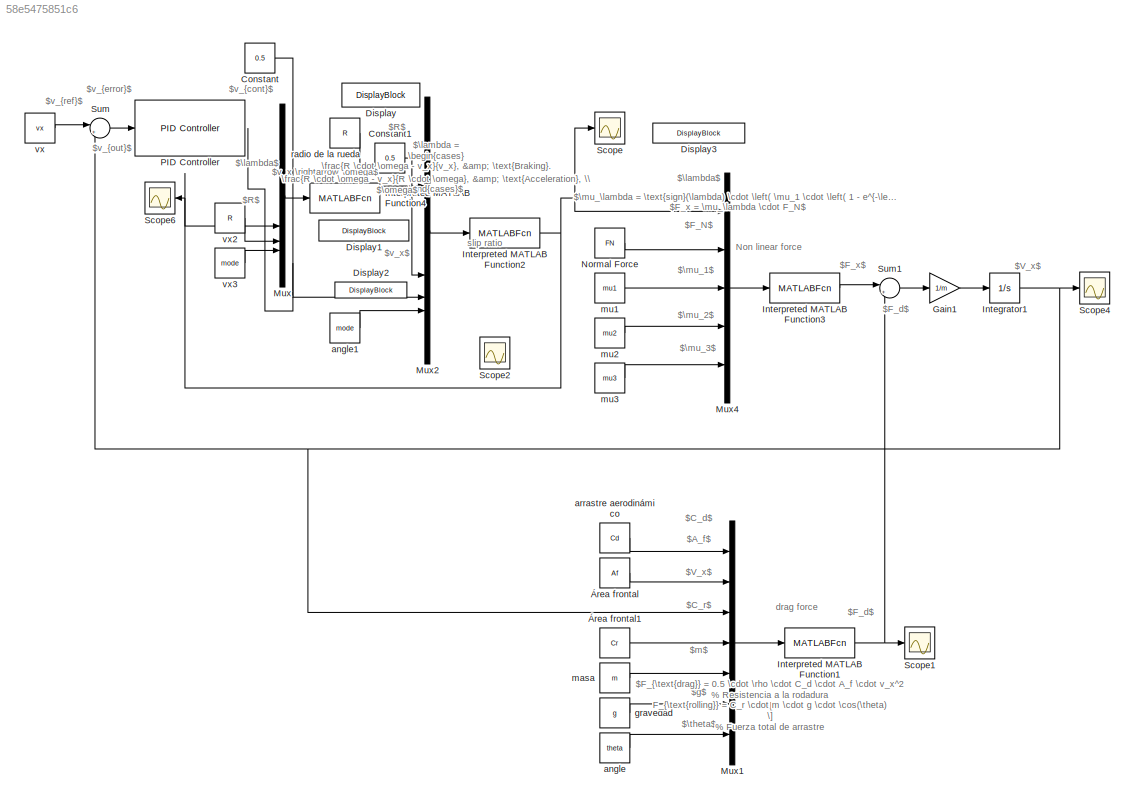
MODEL slx_58e5475851c6
KIND model
CONFIG AbsTol = auto
CONFIG EnableMultiTasking = off
CONFIG FixedStep = auto
CONFIG MaxStep = auto
CONFIG MinStep = auto
CONFIG RelTol = 1e-3
CONFIG SampleTimeConstraint = Unconstrained
CONFIG SolverName = VariableStepAuto
CONFIG StartTime = 0.0
CONFIG StopTime = 10
BLOCK [Constant] Constant
  Value = 0.5
BLOCK [Constant] Constant1
  Value = 0.5
BLOCK [DisplayBlock] Display
  LabelPosition = Hide
  Transparency = 1
BLOCK [DisplayBlock] Display1
  LabelPosition = Hide
  Transparency = 1
BLOCK [DisplayBlock] Display2
  LabelPosition = Hide
  Transparency = 1
BLOCK [DisplayBlock] Display3
  LabelPosition = Hide
  Transparency = 1
BLOCK [Gain] Gain1
  Gain = 1/m
BLOCK [Integrator] Integrator1
BLOCK [MATLABFcn] Interpreted MATLAB Function1
  MATLABFcn = drag_force
  Output1D = off
BLOCK [MATLABFcn] Interpreted MATLAB Function2
  MATLABFcn = slip_ratio
  Output1D = off
BLOCK [MATLABFcn] Interpreted MATLAB Function3
  MATLABFcn = nonlinear_force
  Output1D = off
BLOCK [MATLABFcn] Interpreted MATLAB Function4
  MATLABFcn = convertlw
  Output1D = off
  OutputDimensions = 1
BLOCK [Mux] Mux
  DisplayOption = bar
BLOCK [Mux] Mux1
  DisplayOption = bar
  Inputs = 7
BLOCK [Mux] Mux2
  DisplayOption = bar
BLOCK [Mux] Mux4
  DisplayOption = bar
  Inputs = 5
BLOCK [Constant] Normal Force
  Value = FN
BLOCK [Reference] PID Controller  REF=slpidlib/PID Controller
  LibrarySourceBlock = simulink/Continuous/PID Controller
  SourceBlock = slpidlib/PID Controller
  SourceType = PID 1dof
BLOCK [Scope] Scope
  Floating = off
  NumInputPorts = 1
  ScopeSpecificationString = Simulink.scopes.TimeScopeBlockCfg('CurrentConfiguration', extmgr.ConfigurationSet(extmgr.Configuration('Core','General UI',true),extmgr.Configuration('Core','Source UI',true),extmgr.Configuration('Sources','WiredSimulink',true,'DataLoggingVariableName','ScopeData1'),extmgr.Configuration('Visuals','Time Domain',true,'SerializedDisplays',{struct('MinYLimReal','-1.1','MaxYLimReal','-0.9','YLabelReal'...<+1473ch>
BLOCK [Scope] Scope1
  Floating = off
  NumInputPorts = 1
  ScopeSpecificationString = Simulink.scopes.TimeScopeBlockCfg('CurrentConfiguration', extmgr.ConfigurationSet(extmgr.Configuration('Core','General UI',true),extmgr.Configuration('Core','Source UI',true),extmgr.Configuration('Sources','WiredSimulink',true,'DataLoggingVariableName','ScopeData3'),extmgr.Configuration('Visuals','Time Domain',true,'SerializedDisplays',{struct('MinYLimReal','111.30252','MaxYLimReal','111.35407','Y...<+1538ch>
BLOCK [Scope] Scope2
  Floating = off
  NumInputPorts = 1
  ScopeSpecificationString = Simulink.scopes.TimeScopeBlockCfg('CurrentConfiguration', extmgr.ConfigurationSet(extmgr.Configuration('Core','General UI',true),extmgr.Configuration('Core','Source UI',true),extmgr.Configuration('Sources','WiredSimulink',true,'DataLoggingVariableName','ScopeData2'),extmgr.Configuration('Visuals','Time Domain',true,'SerializedDisplays',{struct('MinYLimReal','-1.00000','MaxYLimReal','1.00000','YLab...<+1492ch>
BLOCK [Scope] Scope4
  Floating = off
  NumInputPorts = 1
  ScopeSpecificationString = Simulink.scopes.TimeScopeBlockCfg('CurrentConfiguration', extmgr.ConfigurationSet(extmgr.Configuration('Core','General UI',true),extmgr.Configuration('Core','Source UI',true),extmgr.Configuration('Sources','WiredSimulink',true),extmgr.Configuration('Visuals','Time Domain',true,'SerializedDisplays',{struct('MinYLimReal','-0.125','MaxYLimReal','1.125','YLabelReal','','MinYLimMag','0.00000','MaxYLimM...<+1455ch>
BLOCK [Scope] Scope6
  Floating = off
  NameLocation = top
  NumInputPorts = 1
  ScopeSpecificationString = Simulink.scopes.TimeScopeBlockCfg('CurrentConfiguration', extmgr.ConfigurationSet(extmgr.Configuration('Core','General UI',true),extmgr.Configuration('Core','Source UI',true),extmgr.Configuration('Sources','WiredSimulink',true,'DataLoggingVariableName','ScopeData1'),extmgr.Configuration('Visuals','Time Domain',true,'SerializedDisplays',{struct('MinYLimReal','0.96116','MaxYLimReal','1.03669','YLabe...<+1493ch>
BLOCK [Sum] Sum
  Inputs = |+-
BLOCK [Sum] Sum1
  Inputs = |+-
BLOCK [Constant] angle
  Value = theta
  VectorParams1D = off
BLOCK [Constant] angle1
  Value = mode
BLOCK [Constant] arrastre aerodinámico
  Value = Cd
  VectorParams1D = off
BLOCK [Constant] gravedad
  Value = g
  VectorParams1D = off
BLOCK [Constant] masa
  Value = m
  VectorParams1D = off
BLOCK [Constant] mu1
  Value = mu1
BLOCK [Constant] mu2
  Value = mu2
BLOCK [Constant] mu3
  Value = mu3
BLOCK [Constant] radio de la rueda
  Value = R
  VectorParams1D = off
BLOCK [Constant] vx
  Value = vx
  VectorParams1D = off
BLOCK [Constant] vx2
  SampleTime = R
  Value = R
  VectorParams1D = off
BLOCK [Constant] vx3
  SampleTime = mode
  Value = mode
  VectorParams1D = off
BLOCK [Constant] Área frontal
  Value = Af
  VectorParams1D = off
BLOCK [Constant] Área frontal1
  Value = Cr
  VectorParams1D = off
ANNOTATION (root): $A_f$
ANNOTATION (root): $C_d$
ANNOTATION (root): $C_r$
ANNOTATION (root): $F_N$
ANNOTATION (root): $F_d$
ANNOTATION (root): $F_x = \mu_\lambda \cdot F_N$
ANNOTATION (root): $F_x$
ANNOTATION (root): $F_{\text{drag}} = 0.5 \cdot \rho \cdot C_d \cdot A_f \cdot v_x^2 % Resistencia a la rodadura \[ F_{\text{rolling}} = C_r \cdot m \cdot g \cdot \cos(\theta) \] % Fuerza total de arrastre \[ F_D = F_{\text{drag}} + F_{\text{rolling}} \]$
ANNOTATION (root): $R$
ANNOTATION (root): $V_x$
ANNOTATION (root): $\lambda$
ANNOTATION (root): $\mu_1$
ANNOTATION (root): $\mu_2$
ANNOTATION (root): $\mu_3$
ANNOTATION (root): $\mu_\lambda = \text{sign}(\lambda) \cdot \left( \mu_1 \cdot \left( 1 - e^{-\left| \lambda \right| \cdot \mu_2} \right) - \left| \lambda \right| \cdot \mu_3 \right)$
ANNOTATION (root): $\omega$
ANNOTATION (root): $\theta$
ANNOTATION (root): $g$
ANNOTATION (root): $m$
ANNOTATION (root): $v_x$
ANNOTATION (root): $v_{cont}$
ANNOTATION (root): $v_{error}$
ANNOTATION (root): $v_{out}$
ANNOTATION (root): $v_{ref}$
ANNOTATION (root): $\lambda = \begin{cases} \frac{R \cdot \omega - v_x}{R \cdot \omega}, & \text{Acceleration}, \\ \frac{R \cdot \omega - v_x}{v_x}, & \text{Braking}. \end{cases}$
ANNOTATION (root): $v_x \rightarrow \omega$
ANNOTATION (root): Non linear force
ANNOTATION (root): drag force
ANNOTATION (root): slip ratio
LINE Constant1:1 -> Mux2:2
NET Constant:1 -> Mux2:3, Mux:1
LINE Gain1:1 -> Integrator1:1
NET Integrator1:1 -> Mux1:3, Scope4:1, Sum:2
NET Interpreted MATLAB Function1:1 -> Scope1:1, Sum1:2
NET Interpreted MATLAB Function2:1 -> Mux4:1, Mux:2, Scope6:1, Scope:1
LINE Interpreted MATLAB Function3:1 -> Sum1:1
LINE Mux1:1 -> Interpreted MATLAB Function1:1
LINE Mux2:1 -> Interpreted MATLAB Function2:1
LINE Mux4:1 -> Interpreted MATLAB Function3:1
LINE Mux:1 -> Interpreted MATLAB Function4:1
LINE Normal Force:1 -> Mux4:2
LINE Sum1:1 -> Gain1:1
LINE Sum:1 -> PID Controller:1
LINE angle1:1 -> Mux2:4
LINE angle:1 -> Mux1:7
LINE arrastre aerodinámico:1 -> Mux1:1
LINE gravedad:1 -> Mux1:6
LINE masa:1 -> Mux1:5
LINE mu1:1 -> Mux4:3
LINE mu2:1 -> Mux4:4
LINE mu3:1 -> Mux4:5
LINE radio de la rueda:1 -> Mux2:1
LINE vx2:1 -> Mux:3
LINE vx3:1 -> Mux:4
LINE vx:1 -> Sum:1
LINE Área frontal1:1 -> Mux1:4
LINE Área frontal:1 -> Mux1:2
note: NET lines group one-source signal fan-out (src -> all destinations, sorted); 1:1 wires keep LINE
